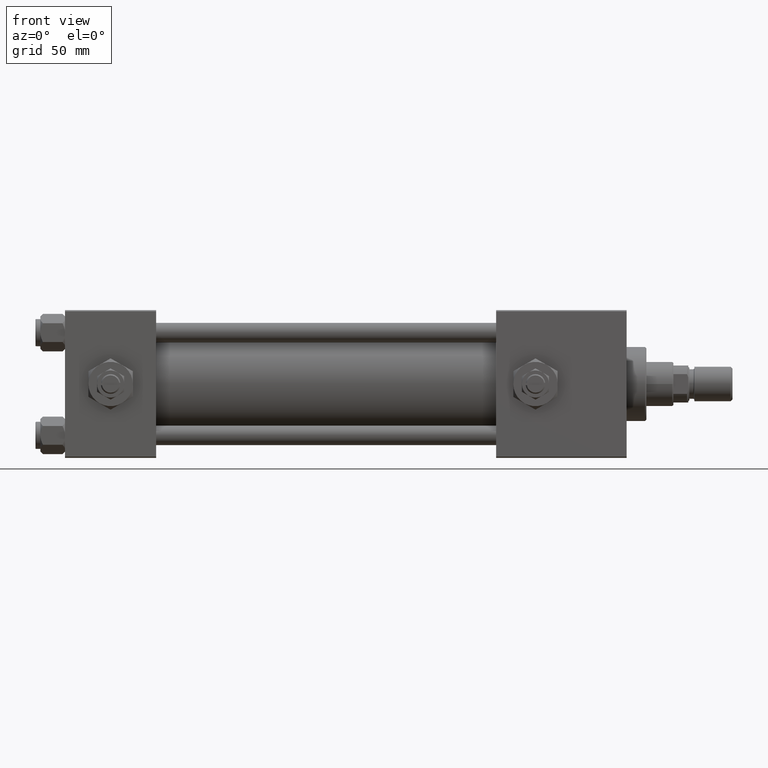
[diagram: clean part render]
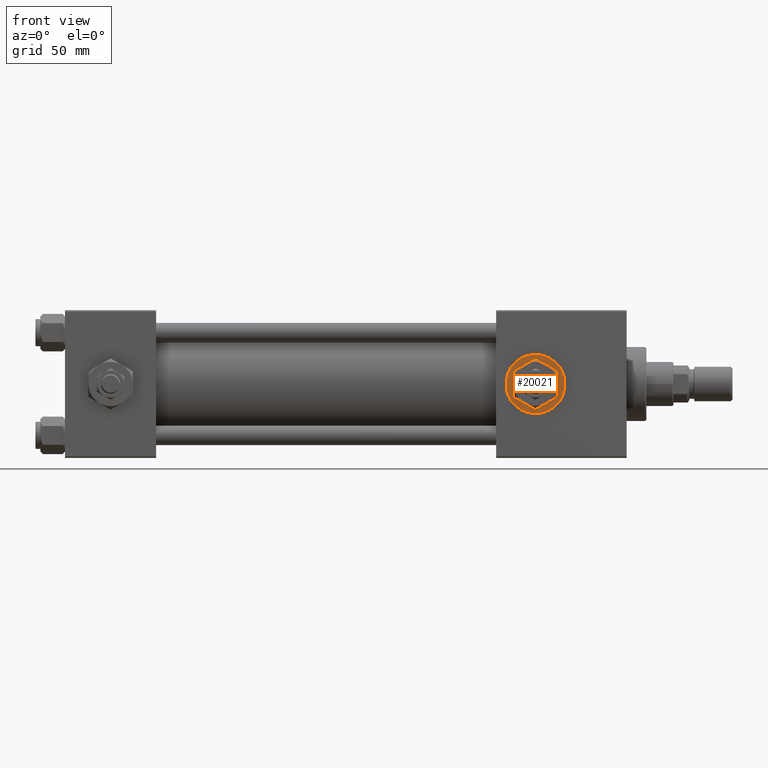
[diagram: same view with one face highlighted and labeled with its STEP entity id]
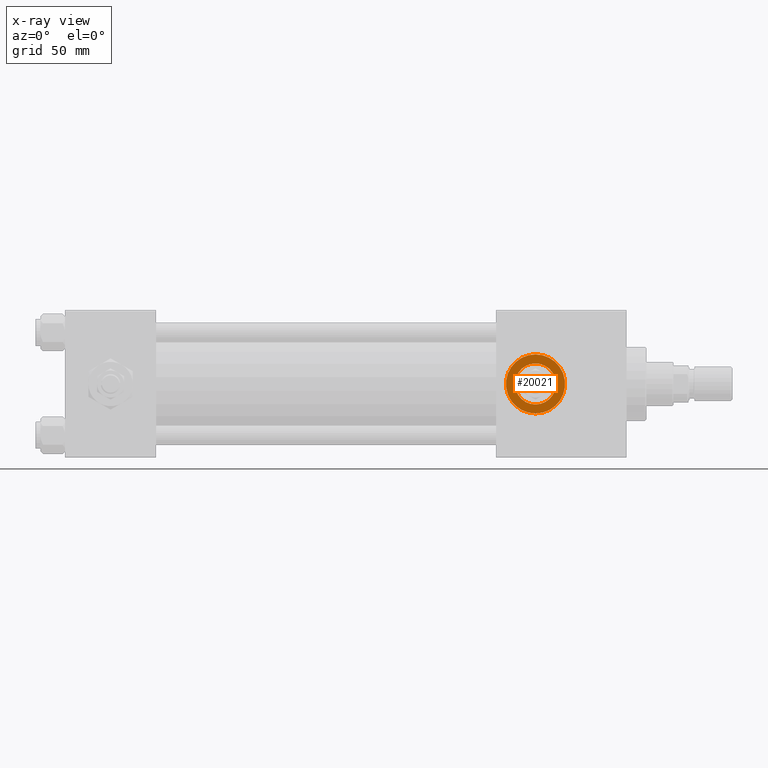
[diagram: x-ray of the same camera — body ghosted, the highlighted face saturated]
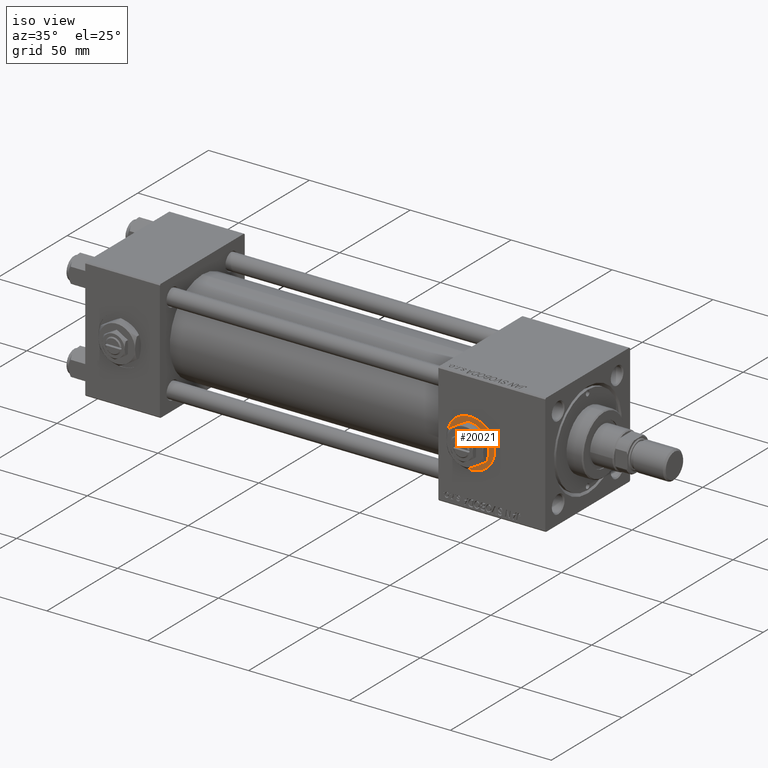
[diagram: same view with one face highlighted and labeled with its STEP entity id]
A machine part, front view. The second image highlights one B-rep face of the part: STEP entity #20021.
The next image is the same camera in x-ray: the body ghosted, the highlighted face saturated — about 0% of this face is hidden behind the body in this view.
A second angle (iso view) of the same face is appended — the face is thin or edge-on in the first view.
In plain terms, the highlighted planar face has unit normal (0, -1, -0).
Its self-contained STEP definition (entity closure, byte-faithful):
#333 = VERTEX_POINT ( 'NONE', #14052 ) ;
#2528 = ORIENTED_EDGE ( 'NONE', *, *, #38541, .T. ) ;
#4105 = CARTESIAN_POINT ( 'NONE',  ( 191.0000000000000000, -29.80000000000000071, 8.329999999999998295 ) ) ;
#5992 = CARTESIAN_POINT ( 'NONE',  ( 191.0000000000000000, -29.80000000000000071, 1.734723475976807403E-17 ) ) ;
#8626 = FACE_OUTER_BOUND ( 'NONE', #9580, .T. ) ;
#9580 = EDGE_LOOP ( 'NONE', ( #52197, #2528 ) ) ;
#9651 = CARTESIAN_POINT ( 'NONE',  ( 191.0000000000000000, -29.80000000000000071, -12.00000000000000533 ) ) ;
#11255 = CARTESIAN_POINT ( 'NONE',  ( 191.0000000000000000, -29.80000000000000071, 1.734723475976808635E-17 ) ) ;
#11471 = EDGE_LOOP ( 'NONE', ( #16052, #49127 ) ) ;
#12885 = CARTESIAN_POINT ( 'NONE',  ( 191.0000000000000000, -29.80000000000000071, 1.734723475976807403E-17 ) ) ;
#13958 = DIRECTION ( 'NONE',  ( 0.000000000000000000, 0.000000000000000000, -1.000000000000000000 ) ) ;
#14052 = CARTESIAN_POINT ( 'NONE',  ( 191.0000000000000000, -29.80000000000000071, -8.329999999999998295 ) ) ;
#15559 = AXIS2_PLACEMENT_3D ( 'NONE', #28979, #45289, #13958 ) ;
#16052 = ORIENTED_EDGE ( 'NONE', *, *, #26035, .F. ) ;
#16057 = DIRECTION ( 'NONE',  ( 0.000000000000000000, 0.000000000000000000, -1.000000000000000000 ) ) ;
#18281 = DIRECTION ( 'NONE',  ( 0.000000000000000000, 0.000000000000000000, -1.000000000000000000 ) ) ;
#18551 = DIRECTION ( 'NONE',  ( 0.000000000000000000, -1.000000000000000000, -8.673617379884036705E-17 ) ) ;
#20021 = ADVANCED_FACE ( 'NONE', ( #32960, #8626 ), #29721, .T. ) ;
#20359 = DIRECTION ( 'NONE',  ( 0.000000000000000000, -1.000000000000000000, -8.673617379884036705E-17 ) ) ;
#21189 = DIRECTION ( 'NONE',  ( 0.000000000000000000, -1.000000000000000000, -8.673617379884036705E-17 ) ) ;
#22099 = AXIS2_PLACEMENT_3D ( 'NONE', #12885, #21189, #29194 ) ;
#22651 = DIRECTION ( 'NONE',  ( 0.000000000000000000, 0.000000000000000000, -1.000000000000000000 ) ) ;
#23254 = CIRCLE ( 'NONE', #15559, 12.00000000000000533 ) ;
#23497 = CIRCLE ( 'NONE', #30261, 8.329999999999998295 ) ;
#25211 = AXIS2_PLACEMENT_3D ( 'NONE', #5992, #18551, #18281 ) ;
#26035 = EDGE_CURVE ( 'NONE', #333, #45690, #35734, .T. ) ;
#28979 = CARTESIAN_POINT ( 'NONE',  ( 191.0000000000000000, -29.80000000000000071, 1.734723475976807403E-17 ) ) ;
#29194 = DIRECTION ( 'NONE',  ( 0.000000000000000000, 8.673617379884036705E-17, -1.000000000000000000 ) ) ;
#29721 = PLANE ( 'NONE',  #22099 ) ;
#30261 = AXIS2_PLACEMENT_3D ( 'NONE', #11255, #20359, #16057 ) ;
#32960 = FACE_BOUND ( 'NONE', #11471, .T. ) ;
#33266 = VERTEX_POINT ( 'NONE', #35972 ) ;
#35734 = CIRCLE ( 'NONE', #41727, 8.329999999999998295 ) ;
#35972 = CARTESIAN_POINT ( 'NONE',  ( 191.0000000000000000, -29.80000000000000071, 12.00000000000000533 ) ) ;
#37177 = CIRCLE ( 'NONE', #25211, 12.00000000000000533 ) ;
#38541 = EDGE_CURVE ( 'NONE', #33266, #47894, #23254, .T. ) ;
#41727 = AXIS2_PLACEMENT_3D ( 'NONE', #46449, #42947, #22651 ) ;
#42947 = DIRECTION ( 'NONE',  ( 0.000000000000000000, -1.000000000000000000, -8.673617379884036705E-17 ) ) ;
#45289 = DIRECTION ( 'NONE',  ( 0.000000000000000000, -1.000000000000000000, -8.673617379884036705E-17 ) ) ;
#45521 = EDGE_CURVE ( 'NONE', #47894, #33266, #37177, .T. ) ;
#45690 = VERTEX_POINT ( 'NONE', #4105 ) ;
#46449 = CARTESIAN_POINT ( 'NONE',  ( 191.0000000000000000, -29.80000000000000071, 1.734723475976808635E-17 ) ) ;
#47894 = VERTEX_POINT ( 'NONE', #9651 ) ;
#49127 = ORIENTED_EDGE ( 'NONE', *, *, #51695, .F. ) ;
#51695 = EDGE_CURVE ( 'NONE', #45690, #333, #23497, .T. ) ;
#52197 = ORIENTED_EDGE ( 'NONE', *, *, #45521, .T. ) ;